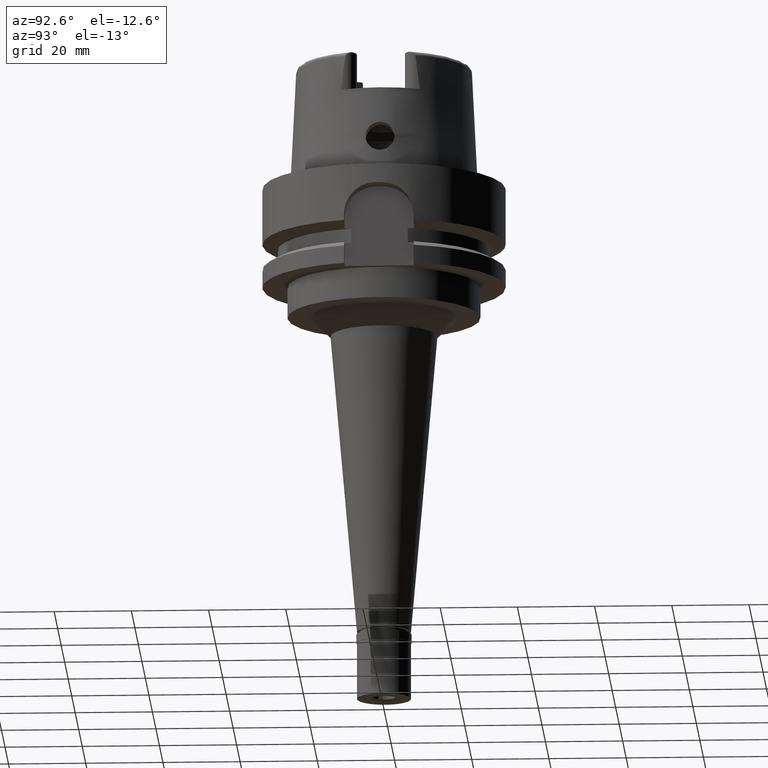
[diagram: clean part render]
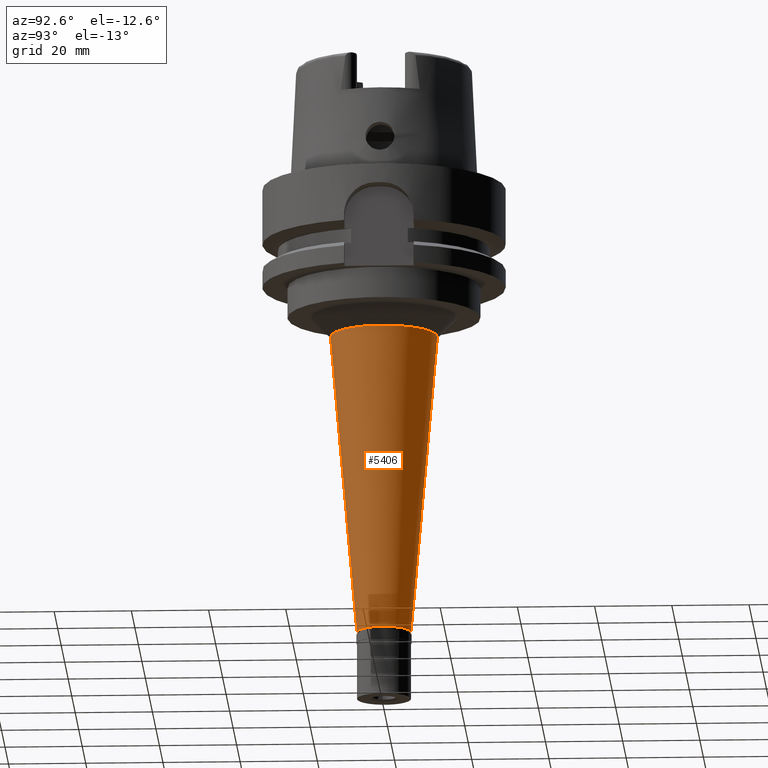
[diagram: same view with one face highlighted and labeled with its STEP entity id]
A machine part, auxiliary view. The second image highlights one B-rep face of the part: STEP entity #5406.
In plain terms, the highlighted conical surface has half-angle 5 deg.
Its self-contained STEP definition (entity closure, byte-faithful):
#5 = ORIENTED_EDGE ( 'NONE', *, *, #2445, .T. ) ;
#47 = CARTESIAN_POINT ( 'NONE',  ( 0.0000000000000000000, -7.000000000000000000, -117.2999999999999972 ) ) ;
#232 = CIRCLE ( 'NONE', #5108, 7.000000000000000000 ) ;
#287 = EDGE_CURVE ( 'NONE', #1634, #4310, #4682, .T. ) ;
#326 = ORIENTED_EDGE ( 'NONE', *, *, #287, .F. ) ;
#417 = DIRECTION ( 'NONE',  ( 0.0000000000000000000, 0.0000000000000000000, 1.000000000000000000 ) ) ;
#554 = CIRCLE ( 'NONE', #1347, 13.85036235407999961 ) ;
#595 = DIRECTION ( 'NONE',  ( 0.0000000000000000000, 0.0000000000000000000, 1.000000000000000000 ) ) ;
#661 = ORIENTED_EDGE ( 'NONE', *, *, #4392, .T. ) ;
#771 = DIRECTION ( 'NONE',  ( 0.0000000000000000000, -1.000000000000000000, 0.0000000000000000000 ) ) ;
#1162 = CARTESIAN_POINT ( 'NONE',  ( 0.0000000000000000000, -13.85036235407999961, -39.00000000000000000 ) ) ;
#1201 = CARTESIAN_POINT ( 'NONE',  ( 0.0000000000000000000, -13.85036235407999961, -39.00000000000000000 ) ) ;
#1258 = CONICAL_SURFACE ( 'NONE', #4272, 10.42518117704000069, 0.08726646259969973729 ) ;
#1347 = AXIS2_PLACEMENT_3D ( 'NONE', #2809, #1544, #3652 ) ;
#1544 = DIRECTION ( 'NONE',  ( 0.0000000000000000000, 0.0000000000000000000, 1.000000000000000000 ) ) ;
#1634 = VERTEX_POINT ( 'NONE', #4046 ) ;
#1711 = EDGE_CURVE ( 'NONE', #3934, #1634, #554, .T. ) ;
#1715 = ORIENTED_EDGE ( 'NONE', *, *, #1711, .F. ) ;
#1809 = DIRECTION ( 'NONE',  ( 0.0000000000000000000, -0.08715574274766389740, -0.9961946980917451011 ) ) ;
#2099 = CARTESIAN_POINT ( 'NONE',  ( 0.0000000000000000000, 0.0000000000000000000, -117.2999999999999972 ) ) ;
#2445 = EDGE_CURVE ( 'NONE', #3934, #2758, #2841, .T. ) ;
#2758 = VERTEX_POINT ( 'NONE', #47 ) ;
#2809 = CARTESIAN_POINT ( 'NONE',  ( 0.0000000000000000000, 0.0000000000000000000, -39.00000000000000000 ) ) ;
#2841 = LINE ( 'NONE', #1162, #4113 ) ;
#3031 = CARTESIAN_POINT ( 'NONE',  ( 0.0000000000000000000, 13.85036235407999961, -39.00000000000000000 ) ) ;
#3393 = CARTESIAN_POINT ( 'NONE',  ( 0.0000000000000000000, 0.0000000000000000000, -78.14999999999999147 ) ) ;
#3557 = VECTOR ( 'NONE', #1809, 1000.000000000000114 ) ;
#3652 = DIRECTION ( 'NONE',  ( 0.0000000000000000000, -1.000000000000000000, 0.0000000000000000000 ) ) ;
#3841 = CARTESIAN_POINT ( 'NONE',  ( 0.0000000000000000000, 7.000000000000000000, -117.2999999999999972 ) ) ;
#3934 = VERTEX_POINT ( 'NONE', #1201 ) ;
#4046 = CARTESIAN_POINT ( 'NONE',  ( 0.0000000000000000000, 13.85036235407999961, -39.00000000000000000 ) ) ;
#4113 = VECTOR ( 'NONE', #4460, 1000.000000000000114 ) ;
#4255 = FACE_OUTER_BOUND ( 'NONE', #5234, .T. ) ;
#4272 = AXIS2_PLACEMENT_3D ( 'NONE', #3393, #595, #5180 ) ;
#4310 = VERTEX_POINT ( 'NONE', #3841 ) ;
#4392 = EDGE_CURVE ( 'NONE', #2758, #4310, #232, .T. ) ;
#4460 = DIRECTION ( 'NONE',  ( 0.0000000000000000000, 0.08715574274766389740, -0.9961946980917451011 ) ) ;
#4682 = LINE ( 'NONE', #3031, #3557 ) ;
#5108 = AXIS2_PLACEMENT_3D ( 'NONE', #2099, #417, #771 ) ;
#5180 = DIRECTION ( 'NONE',  ( 0.0000000000000000000, 1.000000000000000000, 0.0000000000000000000 ) ) ;
#5234 = EDGE_LOOP ( 'NONE', ( #1715, #5, #661, #326 ) ) ;
#5406 = ADVANCED_FACE ( 'NONE', ( #4255 ), #1258, .T. ) ;